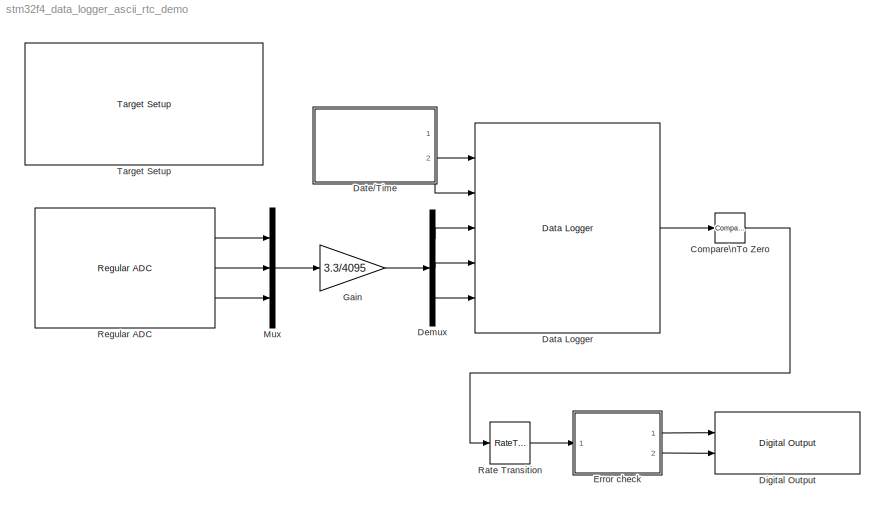
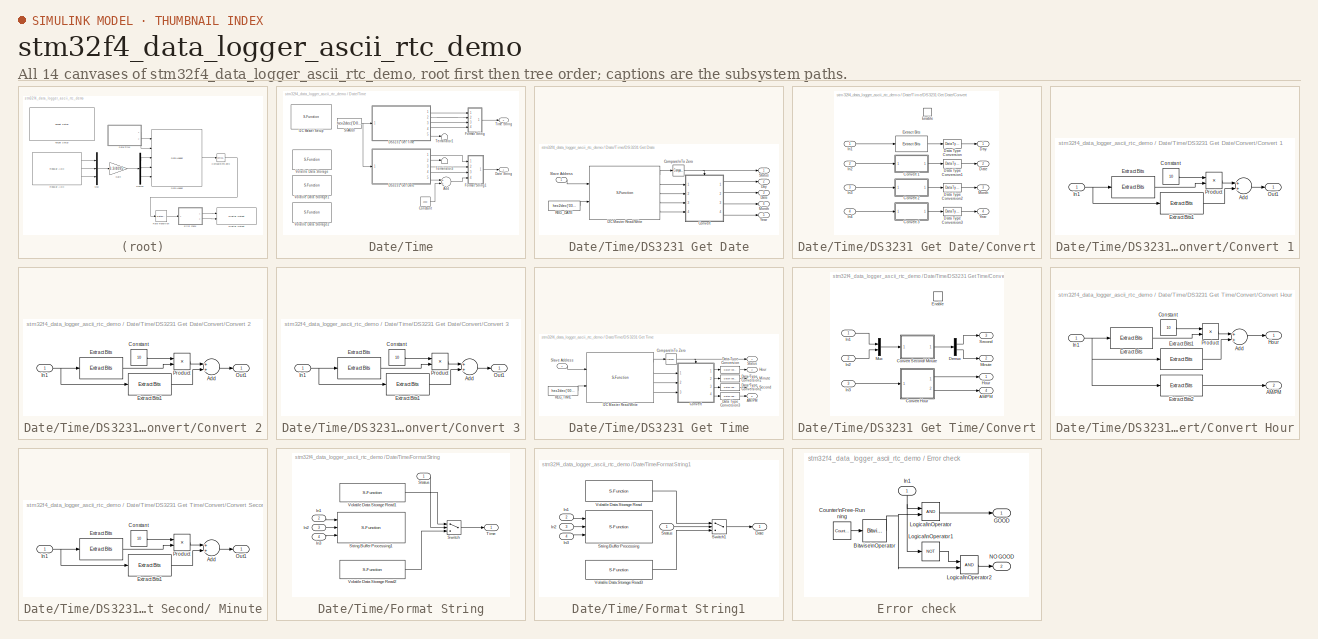
[diagram: thumbnail index - all 14 canvases of the model, root first then tree order]
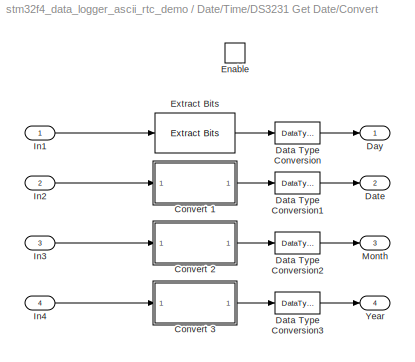
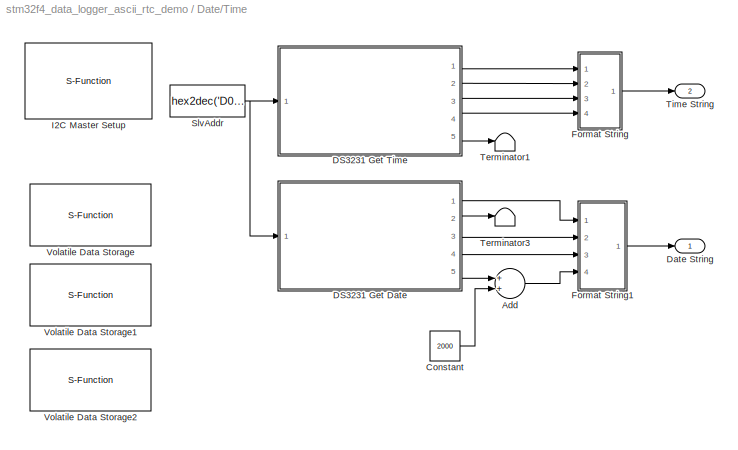
MODEL stm32f4_data_logger_ascii_rtc_demo
KIND model
CONFIG PreLoadFcn = waijung.modelPreload; % Required for working with Waijung Blockset. Do not remove.
BLOCK [Reference] Compare\nTo Zero  REF=simulink/Logic and Bit\nOperations/Compare\nTo Zero
  FunctionWithSeparateData = off
  LogicOutDataTypeMode = uint8
  Ports = [1, 1]
  RTWMemSecDataConstants = Inherit from model
  RTWMemSecDataInternal = Inherit from model
  RTWMemSecDataParameters = Inherit from model
  RTWMemSecFuncExecute = Inherit from model
  RTWMemSecFuncInitTerm = Inherit from model
  ShowPortLabels = FromPortIcon
  SourceBlock = simulink/Logic and Bit\nOperations/Compare\nTo Zero
  SourceType = Compare To Zero
  SystemSampleTime = -1
  ZeroCross = off
  relop = ==
BLOCK [Reference] Data Logger  REF=stm32f4_sdio_lib/Data Logger
  Ports = [5, 1]
  SourceBlock = stm32f4_sdio_lib/Data Logger
  SourceType = stm32f4_datalogger
  advance = off
  asciiformat = '%s,%s,%f,%f,%f,\\r\\n'
  blockid = DataLogger
  buffersize = 2048
  compat = 0
  conf = DataLogger
  createfileoptions = Rename
  enablestatus = on
  filename = 'data.csv'
  header = 'Date,Time,data1,data2,data3\\r\\n'
  inputportlabel = {'D0 (string)','D1 (string)','D2 (single)','D3 (single)','D4 (single)'}
  inputporttype = [-1,-1,-1,-1,-1]
  inputportwidth = [1,1,1,1,1]
  optionstring = [\"on\",\"off\",\"data.csv\",\"Ascii\",\"2048\",\"?\",\"?\",\"on\",\"1000000\",\"Rename\",\"-\",\"-\",\"-\",\"-\",\"-\",\"char *\",\"char *\",\"float\",\"float\",\"float\"]
  outputportlabel = {'Status'}
  outputporttype = [3]
  outputportwidth = [1]
  packet = Ascii
  portpinstr = 0
  porttype_double = 2
  porttype_int16 = 0
  porttype_int32 = 0
  porttype_int8 = 0
  porttype_single = 0
  porttype_uint16 = 0
  porttype_uint32 = 0
  porttype_uint8 = 1
  safeprintf = on
  sampletime = -1
  synctimer = 1
  transfer = Blocking
  variablefilename = off
BLOCK [SubSystem] Date//Time
  FunctionWithSeparateData = off
  MaskHideContents = off
  MinAlgLoopOccurrences = off
  Opaque = off
  Ports = [0, 2]
  PropExecContextOutsideSubsystem = off
  RTWSystemCode = Auto
  RequestExecContextInheritance = off
BLOCK [Sum] Date//Time/Add
  InputSameDT = off
  OutDataType = fixdt(1, 16)
  OutDataTypeMode = Inherit via internal rule
  OutDataTypeStr = Inherit: Inherit via internal rule
  OutScaling = 2^-10
  Ports = [2, 1]
  SaturateOnIntegerOverflow = off
BLOCK [Constant] Date//Time/Constant
  OutDataType = fixdt(1, 16)
  OutDataTypeMode = uint32
  OutDataTypeStr = uint32
  OutScaling = 2^0
  Value = 2000
BLOCK [SubSystem] Date//Time/DS3231 Get Date
  FunctionWithSeparateData = off
  MaskCallbackString = |amg_high_precision_rtc_callback('module');
  MaskDisplay = text(0.5, 0.5, 'Port: I2C1','ver','middle','hor','center');port_label('input', 1,'SlvAddr');port_label('output', 1,'Status');port_label('output', 2,'Day(1-7)');port_label('output', 3,'Date(1-31)');port_label('output', 4,'Month(1-12)');port_label('output', 5,'Year(0-99)');
  MaskEnableString = on,on
  MaskHelp = web(fullfile(waijungdocroot,'DS3231_Get_Date.htm'), '-browser')
  MaskHideContents = off
  MaskIconFrame = on
  MaskIconOpaque = on
  MaskIconRotate = none
  MaskIconUnits = normalized
  MaskInitialization = amg_high_precision_rtc_callback('init');\n
  MaskPortRotate = default
  MaskPromptString = Function|I2C module
  MaskSelfModifiable = on
  MaskStyleString = popup(temp|time|date),popup(1|2|3)
  MaskTabNameString = ,
  MaskToolTipString = on,on
  MaskTunableValueString = on,on
  MaskValueString = date|1
  MaskVarAliasString = ,
  MaskVariables = blockfunction=@1;module=@2;
  MaskVisibilityString = off,on
  MinAlgLoopOccurrences = off
  Opaque = off
  Ports = [1, 5]
  PropExecContextOutsideSubsystem = off
  RTWSystemCode = Auto
  RequestExecContextInheritance = off
  ShowPortLabels = FromPortBlockName
BLOCK [Reference] Date//Time/DS3231 Get Date/Compare\nTo Zero  REF=simulink/Logic and Bit\nOperations/Compare\nTo Zero
  FunctionWithSeparateData = off
  LogicOutDataTypeMode = uint8
  Ports = [1, 1]
  RTWMemSecDataConstants = Inherit from model
  RTWMemSecDataInternal = Inherit from model
  RTWMemSecDataParameters = Inherit from model
  RTWMemSecFuncExecute = Inherit from model
  RTWMemSecFuncInitTerm = Inherit from model
  ShowPortLabels = FromPortIcon
  SourceBlock = simulink/Logic and Bit\nOperations/Compare\nTo Zero
  SourceType = Compare To Zero
  SystemSampleTime = -1
  ZeroCross = off
  relop = ==
BLOCK [SubSystem] Date//Time/DS3231 Get Date/Convert
  FunctionWithSeparateData = off
  MaskHideContents = off
  MinAlgLoopOccurrences = off
  Opaque = off
  Ports = [4, 4, 1]
  PropExecContextOutsideSubsystem = off
  RTWSystemCode = Auto
  RequestExecContextInheritance = off
  TreatAsAtomicUnit = on
BLOCK [SubSystem] Date//Time/DS3231 Get Date/Convert/Convert 1
  FunctionWithSeparateData = off
  MaskHideContents = off
  MinAlgLoopOccurrences = off
  Opaque = off
  Ports = [1, 1]
  PropExecContextOutsideSubsystem = off
  RTWSystemCode = Auto
  RequestExecContextInheritance = off
BLOCK [Sum] Date//Time/DS3231 Get Date/Convert/Convert 1/Add
  InputSameDT = off
  OutDataType = fixdt(1, 16)
  OutDataTypeMode = Inherit via internal rule
  OutDataTypeStr = Inherit: Inherit via internal rule
  OutScaling = 2^-10
  Ports = [2, 1]
  SaturateOnIntegerOverflow = off
BLOCK [Constant] Date//Time/DS3231 Get Date/Convert/Convert 1/Constant
  OutDataType = fixdt(1, 16)
  OutDataTypeMode = uint8
  OutDataTypeStr = uint8
  OutScaling = 2^0
  Value = 10
BLOCK [Reference] Date//Time/DS3231 Get Date/Convert/Convert 1/Extract Bits  REF=simulink/Logic and Bit\nOperations/Extract Bits
  FunctionWithSeparateData = off
  Ports = [1, 1]
  RTWMemSecDataConstants = Inherit from model
  RTWMemSecDataInternal = Inherit from model
  RTWMemSecDataParameters = Inherit from model
  RTWMemSecFuncExecute = Inherit from model
  RTWMemSecFuncInitTerm = Inherit from model
  ShowPortLabels = FromPortIcon
  SourceBlock = simulink/Logic and Bit\nOperations/Extract Bits
  SourceType = Extract Bits
  SystemSampleTime = -1
  bitIdxRange = [4 5]
  bitsToExtract = Range of bits
  numBits = 8
  outScalingMode = Treat bit field as an integer
BLOCK [Reference] Date//Time/DS3231 Get Date/Convert/Convert 1/Extract Bits1  REF=simulink/Logic and Bit\nOperations/Extract Bits
  FunctionWithSeparateData = off
  Ports = [1, 1]
  RTWMemSecDataConstants = Inherit from model
  RTWMemSecDataInternal = Inherit from model
  RTWMemSecDataParameters = Inherit from model
  RTWMemSecFuncExecute = Inherit from model
  RTWMemSecFuncInitTerm = Inherit from model
  ShowPortLabels = FromPortIcon
  SourceBlock = simulink/Logic and Bit\nOperations/Extract Bits
  SourceType = Extract Bits
  SystemSampleTime = -1
  bitIdxRange = [0 3]
  bitsToExtract = Range of bits
  numBits = 8
  outScalingMode = Treat bit field as an integer
BLOCK [Inport] Date//Time/DS3231 Get Date/Convert/Convert 1/In1
  IconDisplay = Port number
BLOCK [Outport] Date//Time/DS3231 Get Date/Convert/Convert 1/Out1
  IconDisplay = Port number
BLOCK [Product] Date//Time/DS3231 Get Date/Convert/Convert 1/Product
  InputSameDT = off
  OutDataType = fixdt(1, 16)
  OutDataTypeMode = Inherit via internal rule
  OutDataTypeStr = Inherit: Inherit via internal rule
  OutScaling = 2^0
  Ports = [2, 1]
  SaturateOnIntegerOverflow = off
BLOCK [SubSystem] Date//Time/DS3231 Get Date/Convert/Convert 2
  FunctionWithSeparateData = off
  MaskHideContents = off
  MinAlgLoopOccurrences = off
  Opaque = off
  Ports = [1, 1]
  PropExecContextOutsideSubsystem = off
  RTWSystemCode = Auto
  RequestExecContextInheritance = off
BLOCK [Sum] Date//Time/DS3231 Get Date/Convert/Convert 2/Add
  InputSameDT = off
  OutDataType = fixdt(1, 16)
  OutDataTypeMode = Inherit via internal rule
  OutDataTypeStr = Inherit: Inherit via internal rule
  OutScaling = 2^-10
  Ports = [2, 1]
  SaturateOnIntegerOverflow = off
BLOCK [Constant] Date//Time/DS3231 Get Date/Convert/Convert 2/Constant
  OutDataType = fixdt(1, 16)
  OutDataTypeMode = uint8
  OutDataTypeStr = uint8
  OutScaling = 2^0
  Value = 10
BLOCK [Reference] Date//Time/DS3231 Get Date/Convert/Convert 2/Extract Bits  REF=simulink/Logic and Bit\nOperations/Extract Bits
  FunctionWithSeparateData = off
  Ports = [1, 1]
  RTWMemSecDataConstants = Inherit from model
  RTWMemSecDataInternal = Inherit from model
  RTWMemSecDataParameters = Inherit from model
  RTWMemSecFuncExecute = Inherit from model
  RTWMemSecFuncInitTerm = Inherit from model
  ShowPortLabels = FromPortIcon
  SourceBlock = simulink/Logic and Bit\nOperations/Extract Bits
  SourceType = Extract Bits
  SystemSampleTime = -1
  bitIdxRange = [4 4]
  bitsToExtract = Range of bits
  numBits = 8
  outScalingMode = Treat bit field as an integer
BLOCK [Reference] Date//Time/DS3231 Get Date/Convert/Convert 2/Extract Bits1  REF=simulink/Logic and Bit\nOperations/Extract Bits
  FunctionWithSeparateData = off
  Ports = [1, 1]
  RTWMemSecDataConstants = Inherit from model
  RTWMemSecDataInternal = Inherit from model
  RTWMemSecDataParameters = Inherit from model
  RTWMemSecFuncExecute = Inherit from model
  RTWMemSecFuncInitTerm = Inherit from model
  ShowPortLabels = FromPortIcon
  SourceBlock = simulink/Logic and Bit\nOperations/Extract Bits
  SourceType = Extract Bits
  SystemSampleTime = -1
  bitIdxRange = [0 3]
  bitsToExtract = Range of bits
  numBits = 8
  outScalingMode = Treat bit field as an integer
BLOCK [Inport] Date//Time/DS3231 Get Date/Convert/Convert 2/In1
  IconDisplay = Port number
BLOCK [Outport] Date//Time/DS3231 Get Date/Convert/Convert 2/Out1
  IconDisplay = Port number
BLOCK [Product] Date//Time/DS3231 Get Date/Convert/Convert 2/Product
  InputSameDT = off
  OutDataType = fixdt(1, 16)
  OutDataTypeMode = Inherit via internal rule
  OutDataTypeStr = Inherit: Inherit via internal rule
  OutScaling = 2^0
  Ports = [2, 1]
  SaturateOnIntegerOverflow = off
BLOCK [SubSystem] Date//Time/DS3231 Get Date/Convert/Convert 3
  FunctionWithSeparateData = off
  MaskHideContents = off
  MinAlgLoopOccurrences = off
  Opaque = off
  Ports = [1, 1]
  PropExecContextOutsideSubsystem = off
  RTWSystemCode = Auto
  RequestExecContextInheritance = off
BLOCK [Sum] Date//Time/DS3231 Get Date/Convert/Convert 3/Add
  InputSameDT = off
  OutDataType = fixdt(1, 16)
  OutDataTypeMode = Inherit via internal rule
  OutDataTypeStr = Inherit: Inherit via internal rule
  OutScaling = 2^-10
  Ports = [2, 1]
  SaturateOnIntegerOverflow = off
BLOCK [Constant] Date//Time/DS3231 Get Date/Convert/Convert 3/Constant
  OutDataType = fixdt(1, 16)
  OutDataTypeMode = uint8
  OutDataTypeStr = uint8
  OutScaling = 2^0
  Value = 10
BLOCK [Reference] Date//Time/DS3231 Get Date/Convert/Convert 3/Extract Bits  REF=simulink/Logic and Bit\nOperations/Extract Bits
  FunctionWithSeparateData = off
  Ports = [1, 1]
  RTWMemSecDataConstants = Inherit from model
  RTWMemSecDataInternal = Inherit from model
  RTWMemSecDataParameters = Inherit from model
  RTWMemSecFuncExecute = Inherit from model
  RTWMemSecFuncInitTerm = Inherit from model
  ShowPortLabels = FromPortIcon
  SourceBlock = simulink/Logic and Bit\nOperations/Extract Bits
  SourceType = Extract Bits
  SystemSampleTime = -1
  bitIdxRange = [4 7]
  bitsToExtract = Range of bits
  numBits = 8
  outScalingMode = Treat bit field as an integer
BLOCK [Reference] Date//Time/DS3231 Get Date/Convert/Convert 3/Extract Bits1  REF=simulink/Logic and Bit\nOperations/Extract Bits
  FunctionWithSeparateData = off
  Ports = [1, 1]
  RTWMemSecDataConstants = Inherit from model
  RTWMemSecDataInternal = Inherit from model
  RTWMemSecDataParameters = Inherit from model
  RTWMemSecFuncExecute = Inherit from model
  RTWMemSecFuncInitTerm = Inherit from model
  ShowPortLabels = FromPortIcon
  SourceBlock = simulink/Logic and Bit\nOperations/Extract Bits
  SourceType = Extract Bits
  SystemSampleTime = -1
  bitIdxRange = [0 3]
  bitsToExtract = Range of bits
  numBits = 8
  outScalingMode = Treat bit field as an integer
BLOCK [Inport] Date//Time/DS3231 Get Date/Convert/Convert 3/In1
  IconDisplay = Port number
BLOCK [Outport] Date//Time/DS3231 Get Date/Convert/Convert 3/Out1
  IconDisplay = Port number
BLOCK [Product] Date//Time/DS3231 Get Date/Convert/Convert 3/Product
  InputSameDT = off
  OutDataType = fixdt(1, 16)
  OutDataTypeMode = Inherit via internal rule
  OutDataTypeStr = Inherit: Inherit via internal rule
  OutScaling = 2^0
  Ports = [2, 1]
  SaturateOnIntegerOverflow = off
BLOCK [DataTypeConversion] Date//Time/DS3231 Get Date/Convert/Data Type Conversion
  OutDataType = fixdt(1, 16)
  OutDataTypeMode = uint8
  OutDataTypeStr = uint8
  OutScaling = 2^0
  RndMeth = Floor
  SaturateOnIntegerOverflow = off
BLOCK [DataTypeConversion] Date//Time/DS3231 Get Date/Convert/Data Type Conversion1
  OutDataType = fixdt(1, 16)
  OutDataTypeMode = uint8
  OutDataTypeStr = uint8
  OutScaling = 2^0
  RndMeth = Floor
  SaturateOnIntegerOverflow = off
BLOCK [DataTypeConversion] Date//Time/DS3231 Get Date/Convert/Data Type Conversion2
  OutDataType = fixdt(1, 16)
  OutDataTypeMode = uint8
  OutDataTypeStr = uint8
  OutScaling = 2^0
  RndMeth = Floor
  SaturateOnIntegerOverflow = off
BLOCK [DataTypeConversion] Date//Time/DS3231 Get Date/Convert/Data Type Conversion3
  OutDataType = fixdt(1, 16)
  OutDataTypeMode = uint8
  OutDataTypeStr = uint8
  OutScaling = 2^0
  RndMeth = Floor
  SaturateOnIntegerOverflow = off
BLOCK [Outport] Date//Time/DS3231 Get Date/Convert/Date
  IconDisplay = Port number
  OutDataType = fixdt(1, 16)
  OutScaling = 2^0
  Port = 2
BLOCK [Outport] Date//Time/DS3231 Get Date/Convert/Day
  IconDisplay = Port number
  OutDataType = fixdt(1, 16)
  OutScaling = 2^0
BLOCK [EnablePort] Date//Time/DS3231 Get Date/Convert/Enable
  Ports = []
BLOCK [Reference] Date//Time/DS3231 Get Date/Convert/Extract Bits  REF=simulink/Logic and Bit\nOperations/Extract Bits
  FunctionWithSeparateData = off
  Ports = [1, 1]
  RTWMemSecDataConstants = Inherit from model
  RTWMemSecDataInternal = Inherit from model
  RTWMemSecDataParameters = Inherit from model
  RTWMemSecFuncExecute = Inherit from model
  RTWMemSecFuncInitTerm = Inherit from model
  ShowPortLabels = FromPortIcon
  SourceBlock = simulink/Logic and Bit\nOperations/Extract Bits
  SourceType = Extract Bits
  SystemSampleTime = -1
  bitIdxRange = [0 3]
  bitsToExtract = Range of bits
  numBits = 8
  outScalingMode = Treat bit field as an integer
BLOCK [Inport] Date//Time/DS3231 Get Date/Convert/In1
  IconDisplay = Port number
  OutDataType = fixdt(1, 16)
  OutScaling = 2^0
BLOCK [Inport] Date//Time/DS3231 Get Date/Convert/In2
  IconDisplay = Port number
  OutDataType = fixdt(1, 16)
  OutScaling = 2^0
  Port = 2
BLOCK [Inport] Date//Time/DS3231 Get Date/Convert/In3
  IconDisplay = Port number
  OutDataType = fixdt(1, 16)
  OutScaling = 2^0
  Port = 3
BLOCK [Inport] Date//Time/DS3231 Get Date/Convert/In4
  IconDisplay = Port number
  OutDataType = fixdt(1, 16)
  OutScaling = 2^0
  Port = 4
BLOCK [Outport] Date//Time/DS3231 Get Date/Convert/Month
  IconDisplay = Port number
  OutDataType = fixdt(1, 16)
  OutScaling = 2^0
  Port = 3
BLOCK [Outport] Date//Time/DS3231 Get Date/Convert/Year
  IconDisplay = Port number
  OutDataType = fixdt(1, 16)
  OutScaling = 2^0
  Port = 4
BLOCK [Outport] Date//Time/DS3231 Get Date/Date
  IconDisplay = Port number
  Port = 3
BLOCK [Outport] Date//Time/DS3231 Get Date/Day
  IconDisplay = Port number
  Port = 2
BLOCK [S-Function] Date//Time/DS3231 Get Date/I2C Master Read//Write
  EnableBusSupport = off
  FunctionName = stm32f4_i2c
  MaskCallbackString = stm32f4_i2c_callback('configuration');|stm32f4_i2c_callback('module');|||stm32f4_i2c_callback('dutycycle');|||stm32f4_i2c_callback('writecount');|stm32f4_i2c_callback('readcount');|stm32f4_i2c_callback('sdapin');|stm32f4_i2c_callback('sclpin');||||stm32f4_i2c_callback('confstr');|stm32f4_i2c_callback('sampletime');|stm32f4_i2c_callback('sampletimestr');|stm32f4_i2c_callback('blockid');  <repeated x3 — deduplicated; at blocks: I2C Master Read/Write, I2C Master Setup>
  MaskDisplay = text(0.5, 0.5, 'Module: I2C1\\nTransfer: Blocking\\nWrite: 1 bytes\\nRead: 4 bytes\\nTs (sec): 0.5','ver','middle','hor','center');port_label('input', 1,'SlvAddr');port_label('input', 2,'Wr0 (uint8)');port_label('output', 1,'Status');port_label('output', 2,'Rd0 (uint8)');port_label('output', 3,'Rd1 (uint8)');port_label('output', 4,'Rd2 (uint8)');port_label('output', 5,'Rd3 (uint8)');
  MaskEnableString = off,on,off,off,on,on,on,on,on,on,on,on,off,off,off,on,on,on
  MaskHelp = web(fullfile(waijungdocroot,'stm32f4_i2c_readwrite.htm'), '-browser')
  MaskIconFrame = on
  MaskIconOpaque = on
  MaskIconRotate = none
  MaskIconUnits = normalized
  MaskInitialization = stm32f4_i2c_callback('init');
  MaskPortRotate = default
  MaskPromptString = Configuration|I2C Module|Last module|Transfer mode|Duty cycle in fast mode|Clock speed (kHz)|Timeout (ms)|Bytes write count|Bytes read count|SDA pin|SCL pin|Wait write time (ms), default is 0|Input type array|Output type array|Configuration string|Sample time (sec)|Compiled sample time (sec) in string|BlockID  <repeated x3 — deduplicated; at blocks: I2C Master Read/Write, I2C Master Setup>
  MaskSelfModifiable = on
  MaskStyleString = popup(Setup|Transaction),popup(1|2|3),edit,popup(Blocking|Non-blocking),popup(TLow/THigh = 16/9|TLow/THigh = 2),edit,edit,edit,edit,popup(-|C9),popup(-|A8),edit,edit,edit,edit,edit,edit,edit
  MaskTabNameString = ,,,,,,,,,,,,,,,,,
  MaskToolTipString = on,on,on,on,on,on,on,on,on,on,on,on,on,on,on,on,on,on
  MaskTunableValueString = off,off,off,off,off,off,off,off,off,off,off,off,off,off,off,off,off,off
  MaskType = stm32f4_i2c
  MaskValueString = Transaction|1|3|Blocking|TLow/THigh = 2|400|25|1|4|C9|A8|0|[2 3 3]|[5 3 3 3 3 3]|[\"C\",\"9\",\"A\",\"8\",\"1\",\"1\",\"6\",\"0\",\"I2C_DutyCycle_2\",\"0\",\"off\"]|-1|0.5|DateTimeDS3231GetDateI2CMasterReadWrite
  MaskVarAliasString = ,,,,,,,,,,,,,,,,,
  MaskVariables = configuration=&1;module=&2;lastmodule=&3;transfer=&4;dutycycle=&5;clkspeed=@6;timeout=@7;writecount=@8;readcount=@9;sdapin=&10;sclpin=&11;waitwritetime=@12;inputtypearray=@13;outputtypearray=@14;confstr=&15;sampletime=@16;sampletimestr=&17;blockid=&18;  <repeated x3 — deduplicated; at blocks: I2C Master Read/Write, I2C Master Setup>
  MaskVisibilityString = off,on,off,off,off,off,off,on,on,off,off,on,off,off,off,on,off,off
  Parameters = configuration,module,transfer,clkspeed,timeout,sdapin,sclpin,writecount,readcount,inputtypearray,outputtypearray,confstr,sampletime,sampletimestr,blockid
  Ports = [2, 5]
BLOCK [Outport] Date//Time/DS3231 Get Date/Month
  IconDisplay = Port number
  Port = 4
BLOCK [Constant] Date//Time/DS3231 Get Date/REG_DATE
  OutDataType = fixdt(1, 16)
  OutDataTypeMode = uint8
  OutDataTypeStr = uint8
  OutScaling = 2^0
  Value = hex2dec('03')
BLOCK [Inport] Date//Time/DS3231 Get Date/Slave Address
  IconDisplay = Port number
  OutDataType = fixdt(1, 16)
  OutScaling = 2^0
BLOCK [Outport] Date//Time/DS3231 Get Date/Status
  IconDisplay = Port number
BLOCK [Outport] Date//Time/DS3231 Get Date/Year
  IconDisplay = Port number
  Port = 5
BLOCK [SubSystem] Date//Time/DS3231 Get Time
  FunctionWithSeparateData = off
  MaskCallbackString = |amg_high_precision_rtc_callback('module');
  MaskDisplay = text(0.5, 0.5, 'Port: I2C1','ver','middle','hor','center');port_label('input', 1,'SlvAddr');port_label('output', 1,'Status');port_label('output', 2,'Hour(0-11/23)');port_label('output', 3,'Minute(0-59)');port_label('output', 4,'Second(0-59)');port_label('output', 5,'AM(0)/PM(1)');
  MaskEnableString = on,on
  MaskHelp = web(fullfile(waijungdocroot,'DS3231_Get_Time.htm'), '-browser')
  MaskHideContents = off
  MaskIconFrame = on
  MaskIconOpaque = on
  MaskIconRotate = none
  MaskIconUnits = normalized
  MaskInitialization = amg_high_precision_rtc_callback('init');\n
  MaskPortRotate = default
  MaskPromptString = Function|I2C module
  MaskSelfModifiable = on
  MaskStyleString = popup(temp|time|date),popup(1|2|3)
  MaskTabNameString = ,
  MaskToolTipString = on,on
  MaskTunableValueString = on,on
  MaskValueString = time|1
  MaskVarAliasString = ,
  MaskVariables = blockfunction=@1;module=@2;
  MaskVisibilityString = off,on
  MinAlgLoopOccurrences = off
  Opaque = off
  Ports = [1, 5]
  PropExecContextOutsideSubsystem = off
  RTWSystemCode = Auto
  RequestExecContextInheritance = off
  ShowPortLabels = FromPortBlockName
BLOCK [Outport] Date//Time/DS3231 Get Time/AM//PM
  IconDisplay = Port number
  Port = 5
BLOCK [Reference] Date//Time/DS3231 Get Time/Compare\nTo Zero  REF=simulink/Logic and Bit\nOperations/Compare\nTo Zero
  FunctionWithSeparateData = off
  LogicOutDataTypeMode = uint8
  Ports = [1, 1]
  RTWMemSecDataConstants = Inherit from model
  RTWMemSecDataInternal = Inherit from model
  RTWMemSecDataParameters = Inherit from model
  RTWMemSecFuncExecute = Inherit from model
  RTWMemSecFuncInitTerm = Inherit from model
  ShowPortLabels = FromPortIcon
  SourceBlock = simulink/Logic and Bit\nOperations/Compare\nTo Zero
  SourceType = Compare To Zero
  SystemSampleTime = -1
  ZeroCross = off
  relop = ==
BLOCK [SubSystem] Date//Time/DS3231 Get Time/Convert
  FunctionWithSeparateData = off
  MaskHideContents = off
  MinAlgLoopOccurrences = off
  Opaque = off
  Ports = [3, 4, 1]
  PropExecContextOutsideSubsystem = off
  RTWSystemCode = Auto
  RequestExecContextInheritance = off
  TreatAsAtomicUnit = on
BLOCK [Outport] Date//Time/DS3231 Get Time/Convert/AM//PM
  IconDisplay = Port number
  OutDataType = fixdt(1, 16)
  OutScaling = 2^0
  Port = 4
BLOCK [SubSystem] Date//Time/DS3231 Get Time/Convert/Convert Hour
  FunctionWithSeparateData = off
  MaskHideContents = off
  MinAlgLoopOccurrences = off
  Opaque = off
  Ports = [1, 2]
  PropExecContextOutsideSubsystem = off
  RTWSystemCode = Auto
  RequestExecContextInheritance = off
BLOCK [Outport] Date//Time/DS3231 Get Time/Convert/Convert Hour/AM//PM
  IconDisplay = Port number
  Port = 2
BLOCK [Sum] Date//Time/DS3231 Get Time/Convert/Convert Hour/Add
  InputSameDT = off
  OutDataType = fixdt(1, 16)
  OutDataTypeMode = Inherit via internal rule
  OutDataTypeStr = Inherit: Inherit via internal rule
  OutScaling = 2^-10
  Ports = [2, 1]
  SaturateOnIntegerOverflow = off
BLOCK [Constant] Date//Time/DS3231 Get Time/Convert/Convert Hour/Constant
  OutDataType = fixdt(1, 16)
  OutDataTypeMode = uint8
  OutDataTypeStr = uint8
  OutScaling = 2^0
  Value = 10
BLOCK [Reference] Date//Time/DS3231 Get Time/Convert/Convert Hour/Extract Bits  REF=simulink/Logic and Bit\nOperations/Extract Bits
  FunctionWithSeparateData = off
  Ports = [1, 1]
  RTWMemSecDataConstants = Inherit from model
  RTWMemSecDataInternal = Inherit from model
  RTWMemSecDataParameters = Inherit from model
  RTWMemSecFuncExecute = Inherit from model
  RTWMemSecFuncInitTerm = Inherit from model
  ShowPortLabels = FromPortIcon
  SourceBlock = simulink/Logic and Bit\nOperations/Extract Bits
  SourceType = Extract Bits
  SystemSampleTime = -1
  bitIdxRange = [4 5]
  bitsToExtract = Range of bits
  numBits = 8
  outScalingMode = Treat bit field as an integer
BLOCK [Reference] Date//Time/DS3231 Get Time/Convert/Convert Hour/Extract Bits1  REF=simulink/Logic and Bit\nOperations/Extract Bits
  FunctionWithSeparateData = off
  Ports = [1, 1]
  RTWMemSecDataConstants = Inherit from model
  RTWMemSecDataInternal = Inherit from model
  RTWMemSecDataParameters = Inherit from model
  RTWMemSecFuncExecute = Inherit from model
  RTWMemSecFuncInitTerm = Inherit from model
  ShowPortLabels = FromPortIcon
  SourceBlock = simulink/Logic and Bit\nOperations/Extract Bits
  SourceType = Extract Bits
  SystemSampleTime = -1
  bitIdxRange = [0 3]
  bitsToExtract = Range of bits
  numBits = 8
  outScalingMode = Treat bit field as an integer
BLOCK [Reference] Date//Time/DS3231 Get Time/Convert/Convert Hour/Extract Bits2  REF=simulink/Logic and Bit\nOperations/Extract Bits
  FunctionWithSeparateData = off
  Ports = [1, 1]
  RTWMemSecDataConstants = Inherit from model
  RTWMemSecDataInternal = Inherit from model
  RTWMemSecDataParameters = Inherit from model
  RTWMemSecFuncExecute = Inherit from model
  RTWMemSecFuncInitTerm = Inherit from model
  ShowPortLabels = FromPortIcon
  SourceBlock = simulink/Logic and Bit\nOperations/Extract Bits
  SourceType = Extract Bits
  SystemSampleTime = -1
  bitIdxRange = [5 5]
  bitsToExtract = Range of bits
  numBits = 8
  outScalingMode = Treat bit field as an integer
BLOCK [Outport] Date//Time/DS3231 Get Time/Convert/Convert Hour/Hour
  IconDisplay = Port number
BLOCK [Inport] Date//Time/DS3231 Get Time/Convert/Convert Hour/In1
  IconDisplay = Port number
BLOCK [Product] Date//Time/DS3231 Get Time/Convert/Convert Hour/Product
  InputSameDT = off
  OutDataType = fixdt(1, 16)
  OutDataTypeMode = Inherit via internal rule
  OutDataTypeStr = Inherit: Inherit via internal rule
  OutScaling = 2^0
  Ports = [2, 1]
  SaturateOnIntegerOverflow = off
BLOCK [SubSystem] Date//Time/DS3231 Get Time/Convert/Convert Second// Minute
  FunctionWithSeparateData = off
  MaskHideContents = off
  MinAlgLoopOccurrences = off
  Opaque = off
  Ports = [1, 1]
  PropExecContextOutsideSubsystem = off
  RTWSystemCode = Auto
  RequestExecContextInheritance = off
BLOCK [Sum] Date//Time/DS3231 Get Time/Convert/Convert Second// Minute/Add
  InputSameDT = off
  OutDataType = fixdt(1, 16)
  OutDataTypeMode = Inherit via internal rule
  OutDataTypeStr = Inherit: Inherit via internal rule
  OutScaling = 2^-10
  Ports = [2, 1]
  SaturateOnIntegerOverflow = off
BLOCK [Constant] Date//Time/DS3231 Get Time/Convert/Convert Second// Minute/Constant
  OutDataType = fixdt(1, 16)
  OutDataTypeMode = uint8
  OutDataTypeStr = uint8
  OutScaling = 2^0
  Value = 10
BLOCK [Reference] Date//Time/DS3231 Get Time/Convert/Convert Second// Minute/Extract Bits  REF=simulink/Logic and Bit\nOperations/Extract Bits
  FunctionWithSeparateData = off
  Ports = [1, 1]
  RTWMemSecDataConstants = Inherit from model
  RTWMemSecDataInternal = Inherit from model
  RTWMemSecDataParameters = Inherit from model
  RTWMemSecFuncExecute = Inherit from model
  RTWMemSecFuncInitTerm = Inherit from model
  ShowPortLabels = FromPortIcon
  SourceBlock = simulink/Logic and Bit\nOperations/Extract Bits
  SourceType = Extract Bits
  SystemSampleTime = -1
  bitIdxRange = [4 6]
  bitsToExtract = Range of bits
  numBits = 8
  outScalingMode = Treat bit field as an integer
BLOCK [Reference] Date//Time/DS3231 Get Time/Convert/Convert Second// Minute/Extract Bits1  REF=simulink/Logic and Bit\nOperations/Extract Bits
  FunctionWithSeparateData = off
  Ports = [1, 1]
  RTWMemSecDataConstants = Inherit from model
  RTWMemSecDataInternal = Inherit from model
  RTWMemSecDataParameters = Inherit from model
  RTWMemSecFuncExecute = Inherit from model
  RTWMemSecFuncInitTerm = Inherit from model
  ShowPortLabels = FromPortIcon
  SourceBlock = simulink/Logic and Bit\nOperations/Extract Bits
  SourceType = Extract Bits
  SystemSampleTime = -1
  bitIdxRange = [0 3]
  bitsToExtract = Range of bits
  numBits = 8
  outScalingMode = Treat bit field as an integer
BLOCK [Inport] Date//Time/DS3231 Get Time/Convert/Convert Second// Minute/In1
  IconDisplay = Port number
BLOCK [Outport] Date//Time/DS3231 Get Time/Convert/Convert Second// Minute/Out1
  IconDisplay = Port number
BLOCK [Product] Date//Time/DS3231 Get Time/Convert/Convert Second// Minute/Product
  InputSameDT = off
  OutDataType = fixdt(1, 16)
  OutDataTypeMode = Inherit via internal rule
  OutDataTypeStr = Inherit: Inherit via internal rule
  OutScaling = 2^0
  Ports = [2, 1]
  SaturateOnIntegerOverflow = off
BLOCK [Demux] Date//Time/DS3231 Get Time/Convert/Demux
  DisplayOption = bar
  Outputs = 2
  Ports = [1, 2]
BLOCK [EnablePort] Date//Time/DS3231 Get Time/Convert/Enable
  Ports = []
BLOCK [Outport] Date//Time/DS3231 Get Time/Convert/Hour
  IconDisplay = Port number
  OutDataType = fixdt(1, 16)
  OutScaling = 2^0
BLOCK [Inport] Date//Time/DS3231 Get Time/Convert/In1
  IconDisplay = Port number
  OutDataType = fixdt(1, 16)
  OutScaling = 2^0
BLOCK [Inport] Date//Time/DS3231 Get Time/Convert/In2
  IconDisplay = Port number
  OutDataType = fixdt(1, 16)
  OutScaling = 2^0
  Port = 2
BLOCK [Inport] Date//Time/DS3231 Get Time/Convert/In3
  IconDisplay = Port number
  OutDataType = fixdt(1, 16)
  OutScaling = 2^0
  Port = 3
BLOCK [Outport] Date//Time/DS3231 Get Time/Convert/Minute
  IconDisplay = Port number
  OutDataType = fixdt(1, 16)
  OutScaling = 2^0
  Port = 2
BLOCK [Mux] Date//Time/DS3231 Get Time/Convert/Mux
  DisplayOption = bar
  Inputs = 2
  Ports = [2, 1]
BLOCK [Outport] Date//Time/DS3231 Get Time/Convert/Second
  IconDisplay = Port number
  OutDataType = fixdt(1, 16)
  OutScaling = 2^0
  Port = 3
BLOCK [DataTypeConversion] Date//Time/DS3231 Get Time/Data Type Conversion
  OutDataType = fixdt(1, 16)
  OutDataTypeMode = uint8
  OutDataTypeStr = uint8
  OutScaling = 2^0
  RndMeth = Floor
  SaturateOnIntegerOverflow = off
BLOCK [DataTypeConversion] Date//Time/DS3231 Get Time/Data Type Conversion1
  OutDataType = fixdt(1, 16)
  OutDataTypeMode = uint8
  OutDataTypeStr = uint8
  OutScaling = 2^0
  RndMeth = Floor
  SaturateOnIntegerOverflow = off
BLOCK [DataTypeConversion] Date//Time/DS3231 Get Time/Data Type Conversion2
  OutDataType = fixdt(1, 16)
  OutDataTypeMode = uint8
  OutDataTypeStr = uint8
  OutScaling = 2^0
  RndMeth = Floor
  SaturateOnIntegerOverflow = off
BLOCK [DataTypeConversion] Date//Time/DS3231 Get Time/Data Type Conversion3
  OutDataType = fixdt(1, 16)
  OutDataTypeMode = uint8
  OutDataTypeStr = uint8
  OutScaling = 2^0
  RndMeth = Floor
  SaturateOnIntegerOverflow = off
BLOCK [Outport] Date//Time/DS3231 Get Time/Hour
  IconDisplay = Port number
  Port = 2
BLOCK [S-Function] Date//Time/DS3231 Get Time/I2C Master Read//Write
  EnableBusSupport = off
  FunctionName = stm32f4_i2c
  MaskDisplay = text(0.5, 0.5, 'Module: I2C1\\nTransfer: Blocking\\nWrite: 1 bytes\\nRead: 3 bytes\\nTs (sec): 0.5','ver','middle','hor','center');port_label('input', 1,'SlvAddr');port_label('input', 2,'Wr0 (uint8)');port_label('output', 1,'Status');port_label('output', 2,'Rd0 (uint8)');port_label('output', 3,'Rd1 (uint8)');port_label('output', 4,'Rd2 (uint8)');
  MaskEnableString = off,on,off,off,on,on,on,on,on,on,on,on,off,off,off,on,on,on
  MaskHelp = web(fullfile(waijungdocroot,'stm32f4_i2c_readwrite.htm'), '-browser')
  MaskIconFrame = on
  MaskIconOpaque = on
  MaskIconRotate = none
  MaskIconUnits = normalized
  MaskInitialization = stm32f4_i2c_callback('init');
  MaskPortRotate = default
  MaskSelfModifiable = on
  MaskStyleString = popup(Setup|Transaction),popup(1|2|3),edit,popup(Blocking|Non-blocking),popup(TLow/THigh = 16/9|TLow/THigh = 2),edit,edit,edit,edit,popup(-|C9),popup(-|A8),edit,edit,edit,edit,edit,edit,edit
  MaskTabNameString = ,,,,,,,,,,,,,,,,,
  MaskToolTipString = on,on,on,on,on,on,on,on,on,on,on,on,on,on,on,on,on,on
  MaskTunableValueString = off,off,off,off,off,off,off,off,off,off,off,off,off,off,off,off,off,off
  MaskType = stm32f4_i2c
  MaskValueString = Transaction|1|3|Blocking|TLow/THigh = 2|400|25|1|3|C9|A8|0|[2 3 3]|[4 3 3 3 3]|[\"C\",\"9\",\"A\",\"8\",\"1\",\"1\",\"6\",\"0\",\"I2C_DutyCycle_2\",\"0\",\"off\"]|-1|0.5|DateTimeDS3231GetTimeI2CMasterReadWrite
  MaskVarAliasString = ,,,,,,,,,,,,,,,,,
  MaskVisibilityString = off,on,off,off,off,off,off,on,on,off,off,on,off,off,off,on,off,off
  Parameters = configuration,module,transfer,clkspeed,timeout,sdapin,sclpin,writecount,readcount,inputtypearray,outputtypearray,confstr,sampletime,sampletimestr,blockid
  Ports = [2, 4]
BLOCK [Outport] Date//Time/DS3231 Get Time/Minute
  IconDisplay = Port number
  Port = 3
BLOCK [Constant] Date//Time/DS3231 Get Time/REG_TIME
  OutDataType = fixdt(1, 16)
  OutDataTypeMode = uint8
  OutDataTypeStr = uint8
  OutScaling = 2^0
  Value = hex2dec('00')
BLOCK [Outport] Date//Time/DS3231 Get Time/Second
  IconDisplay = Port number
  Port = 4
BLOCK [Inport] Date//Time/DS3231 Get Time/Slave Address
  IconDisplay = Port number
  OutDataType = fixdt(1, 16)
  OutScaling = 2^0
BLOCK [Outport] Date//Time/DS3231 Get Time/Status
  IconDisplay = Port number
BLOCK [Outport] Date//Time/Date String
  IconDisplay = Port number
  OutDataType = fixdt(1, 16)
  OutScaling = 2^0
BLOCK [SubSystem] Date//Time/Format String
  FunctionWithSeparateData = off
  MaskHideContents = off
  MinAlgLoopOccurrences = off
  Opaque = off
  Ports = [4, 1]
  PropExecContextOutsideSubsystem = off
  RTWSystemCode = Auto
  RequestExecContextInheritance = off
BLOCK [Inport] Date//Time/Format String/In1
  IconDisplay = Port number
  Port = 2
BLOCK [Inport] Date//Time/Format String/In2
  IconDisplay = Port number
  Port = 3
BLOCK [Inport] Date//Time/Format String/In3
  IconDisplay = Port number
  Port = 4
BLOCK [Inport] Date//Time/Format String/Status
  IconDisplay = Port number
BLOCK [S-Function] Date//Time/Format String/String Buffer Processing1
  EnableBusSupport = off
  FunctionName = waijung_stringbuffer_processing
  MaskCallbackString = waijung_stringbuffer_processing_callback('configuration');||waijung_stringbuffer_processing_callback('sformat');|waijung_stringbuffer_processing_callback('enableoutput');||||||waijung_stringbuffer_processing_callback('sampletime');|waijung_stringbuffer_processing_callback('sampletimestr');|waijung_stringbuffer_processing_callback('blockid');
  MaskDescription = This block implements string processing, sprintf/ sscanf command.\nSupported format:\n%u, %i, %o, %x: uint32\n%d: int32\n%e, %g, %f: single\n%c: int8\n\nStatus:\n 0: Failed.\n Non-zero: Success.
  MaskDisplay = text(0.5, 0.5, '[ sprintf ]\\nBuffer: time_str\\nTs (sec): 0.5','ver','middle','hor','center');port_label('input', 1,'%u');port_label('input', 2,'%u');port_label('input', 3,'%u');
  MaskEnableString = on,on,on,on,off,on,on,on,on,on,off,off
  MaskHelp = web(fullfile(waijungdocroot,'String_Buffer_Processing.htm'))
  MaskIconFrame = on
  MaskIconOpaque = on
  MaskIconRotate = none
  MaskIconUnits = normalized
  MaskInitialization = waijung_stringbuffer_processing_callback('init');
  MaskPortRotate = default
  MaskPromptString = Function|String buffer|Printf format|Enable output status|Variable name|Input type array|Output type array|Port type list|Port type count|Sample time (sec)|Compiled sample time (sec) in string|BlockID
  MaskSelfModifiable = on
  MaskStyleString = popup(sprintf|sscanf),popup(date_str|time_str|date_time_error|<output>),edit,checkbox,edit,edit,edit,edit,edit,edit,edit,edit
  MaskTabNameString = ,,,,,,,,,,,
  MaskToolTipString = on,on,on,on,on,on,on,on,on,on,on,on
  MaskTunableValueString = on,off,off,off,off,off,off,off,off,off,off,off
  MaskType = waijung_stringbuffer_processing
  MaskValueString = sprintf|time_str|'%2u:%2u:%2u'|off|DateTimeVolatileDataStorage1_time_str|[3 -1 -1 -1]|[0]|[\"uint32_t\",\"uint32_t\",\"uint32_t\"]|3|-1|0.5|DateTimeFormatStringStringBufferProcessing1
  MaskVarAliasString = ,,,,,,,,,,,
  MaskVariables = configuration=&1;storagename=&2;sformat=@3;enableoutput=&4;varname=&5;inputtypearray=@6;outputtypearray=@7;porttypes=&8;portcount=@9;sampletime=@10;sampletimestr=&11;blockid=&12;
  MaskVisibilityString = on,on,on,on,off,off,off,off,off,on,off,off
  Parameters = configuration,varname,sformat,porttypes,portcount,inputtypearray,outputtypearray,sampletime,sampletimestr,blockid
  Ports = [3]
BLOCK [Switch] Date//Time/Format String/Switch
  Criteria = u2 ~= 0
  InputSameDT = off
  OutDataType = fixdt(1, 16)
  OutScaling = 2^0
  SaturateOnIntegerOverflow = off
BLOCK [Outport] Date//Time/Format String/Time
  IconDisplay = Port number
BLOCK [S-Function] Date//Time/Format String/Volatile Data Storage Read1
  EnableBusSupport = off
  FunctionName = waijung_vdata_read
  MaskCallbackString = waijung_vdata_read_callback('storagename');|waijung_vdata_read_callback('varname');|waijung_vdata_read_callback('sampletime');|waijung_vdata_read_callback('sampletimestr');|waijung_vdata_read_callback('blockid');|waijung_vdata_read_callback('storagetype');|  <repeated x4 — deduplicated; at blocks: Volatile Data Storage Read1, Volatile Data Storage Read2, Volatile Data Storage Read, Volatile Data Storage Read3>
  MaskDescription = This block implements read data from a buffer.
  MaskDisplay = text(0.05, 0.5, 'Buffer: time_str','ver','middle','hor','left');port_label('output',1,'D1(string)')
  MaskEnableString = on,off,on,off,off,on,on
  MaskHelp = web(fullfile(waijungdocroot,'Volatile_Data_Storage_Read.htm'))
  MaskIconFrame = on
  MaskIconOpaque = on
  MaskIconRotate = none
  MaskIconUnits = normalized
  MaskInitialization = waijung_vdata_read_callback('init');
  MaskPortRotate = default
  MaskPromptString = Storage Name|Variable name|Sample time (sec)|Compiled sample time (sec) in string|BlockID|Data type|Data type string
  MaskSelfModifiable = on
  MaskStyleString = popup(date_str|time_str|date_time_error),edit,edit,edit,edit,edit,edit
  MaskTabNameString = ,,,,,,
  MaskToolTipString = on,on,on,on,on,on,on
  MaskTunableValueString = off,off,off,off,off,off,off
  MaskType = waijung_vdata_read
  MaskValueString = time_str|DateTimeVolatileDataStorage1_time_str|inf|0.5|DateTimeFormatStringVolatileDataStorageRead1|string|uint32_t
  MaskVarAliasString = ,,,,,,
  MaskVariables = storagename=&1;varname=&2;sampletime=@3;sampletimestr=&4;blockid=&5;storagetype=&6;storagetypestr=&7;
  MaskVisibilityString = on,off,on,off,off,off,off
  Parameters = storagename,varname,sampletime,sampletimestr,blockid,storagetype,storagetypestr
  Ports = [0, 1]
BLOCK [S-Function] Date//Time/Format String/Volatile Data Storage Read2
  EnableBusSupport = off
  FunctionName = waijung_vdata_read
  MaskDescription = This block implements read data from a buffer.
  MaskDisplay = text(0.05, 0.5, 'Buffer: date_time_error','ver','middle','hor','left');port_label('output',1,'D1(string)')
  MaskEnableString = on,off,on,off,off,on,on
  MaskHelp = web(fullfile(waijungdocroot,'Volatile_Data_Storage_Read.htm'))
  MaskIconFrame = on
  MaskIconOpaque = on
  MaskIconRotate = none
  MaskIconUnits = normalized
  MaskInitialization = waijung_vdata_read_callback('init');
  MaskPortRotate = default
  MaskPromptString = Storage Name|Variable name|Sample time (sec)|Compiled sample time (sec) in string|BlockID|Data type|Data type string
  MaskSelfModifiable = on
  MaskStyleString = popup(date_str|time_str|date_time_error),edit,edit,edit,edit,edit,edit
  MaskTabNameString = ,,,,,,
  MaskToolTipString = on,on,on,on,on,on,on
  MaskTunableValueString = off,off,off,off,off,off,off
  MaskType = waijung_vdata_read
  MaskValueString = date_time_error|DateTimeVolatileDataStorage2_date_time_error|inf|0.5|DateTimeFormatStringVolatileDataStorageRead2|string|uint32_t
  MaskVarAliasString = ,,,,,,
  MaskVariables = storagename=&1;varname=&2;sampletime=@3;sampletimestr=&4;blockid=&5;storagetype=&6;storagetypestr=&7;
  MaskVisibilityString = on,off,on,off,off,off,off
  Parameters = storagename,varname,sampletime,sampletimestr,blockid,storagetype,storagetypestr
  Ports = [0, 1]
BLOCK [SubSystem] Date//Time/Format String1
  FunctionWithSeparateData = off
  MaskHideContents = off
  MinAlgLoopOccurrences = off
  Opaque = off
  Ports = [4, 1]
  PropExecContextOutsideSubsystem = off
  RTWSystemCode = Auto
  RequestExecContextInheritance = off
BLOCK [Outport] Date//Time/Format String1/Date
  IconDisplay = Port number
BLOCK [Inport] Date//Time/Format String1/In1
  IconDisplay = Port number
  Port = 2
BLOCK [Inport] Date//Time/Format String1/In2
  IconDisplay = Port number
  Port = 3
BLOCK [Inport] Date//Time/Format String1/In3
  IconDisplay = Port number
  Port = 4
BLOCK [Inport] Date//Time/Format String1/Status
  IconDisplay = Port number
BLOCK [S-Function] Date//Time/Format String1/String Buffer Processing
  EnableBusSupport = off
  FunctionName = waijung_stringbuffer_processing
  MaskCallbackString = waijung_stringbuffer_processing_callback('configuration');||waijung_stringbuffer_processing_callback('sformat');|waijung_stringbuffer_processing_callback('enableoutput');||||||waijung_stringbuffer_processing_callback('sampletime');|waijung_stringbuffer_processing_callback('sampletimestr');|waijung_stringbuffer_processing_callback('blockid');
  MaskDescription = This block implements string processing, sprintf/ sscanf command.\nSupported format:\n%u, %i, %o, %x: uint32\n%d: int32\n%e, %g, %f: single\n%c: int8\n\nStatus:\n 0: Failed.\n Non-zero: Success.
  MaskDisplay = text(0.5, 0.5, '[ sprintf ]\\nBuffer: date_str\\nTs (sec): 0.5','ver','middle','hor','center');port_label('input', 1,'%u');port_label('input', 2,'%u');port_label('input', 3,'%u');
  MaskEnableString = on,on,on,on,off,on,on,on,on,on,off,off
  MaskHelp = web(fullfile(waijungdocroot,'String_Buffer_Processing.htm'))
  MaskIconFrame = on
  MaskIconOpaque = on
  MaskIconRotate = none
  MaskIconUnits = normalized
  MaskInitialization = waijung_stringbuffer_processing_callback('init');
  MaskPortRotate = default
  MaskPromptString = Function|String buffer|Printf format|Enable output status|Variable name|Input type array|Output type array|Port type list|Port type count|Sample time (sec)|Compiled sample time (sec) in string|BlockID
  MaskSelfModifiable = on
  MaskStyleString = popup(sprintf|sscanf),popup(date_str|time_str|date_time_error|<output>),edit,checkbox,edit,edit,edit,edit,edit,edit,edit,edit
  MaskTabNameString = ,,,,,,,,,,,
  MaskToolTipString = on,on,on,on,on,on,on,on,on,on,on,on
  MaskTunableValueString = on,off,off,off,off,off,off,off,off,off,off,off
  MaskType = waijung_stringbuffer_processing
  MaskValueString = sprintf|date_str|'%2u/%2u/%2u'|off|DateTimeVolatileDataStorage_date_str|[3 -1 -1 -1]|[0]|[\"uint32_t\",\"uint32_t\",\"uint32_t\"]|3|-1|0.5|DateTimeFormatString1StringBufferProcessing
  MaskVarAliasString = ,,,,,,,,,,,
  MaskVariables = configuration=&1;storagename=&2;sformat=@3;enableoutput=&4;varname=&5;inputtypearray=@6;outputtypearray=@7;porttypes=&8;portcount=@9;sampletime=@10;sampletimestr=&11;blockid=&12;
  MaskVisibilityString = on,on,on,on,off,off,off,off,off,on,off,off
  Parameters = configuration,varname,sformat,porttypes,portcount,inputtypearray,outputtypearray,sampletime,sampletimestr,blockid
  Ports = [3]
BLOCK [Switch] Date//Time/Format String1/Switch1
  Criteria = u2 ~= 0
  InputSameDT = off
  OutDataType = fixdt(1, 16)
  OutScaling = 2^0
  SaturateOnIntegerOverflow = off
BLOCK [S-Function] Date//Time/Format String1/Volatile Data Storage Read
  EnableBusSupport = off
  FunctionName = waijung_vdata_read
  MaskDescription = This block implements read data from a buffer.
  MaskDisplay = text(0.05, 0.5, 'Buffer: date_str','ver','middle','hor','left');port_label('output',1,'D1(string)')
  MaskEnableString = on,off,on,off,off,on,on
  MaskHelp = web(fullfile(waijungdocroot,'Volatile_Data_Storage_Read.htm'))
  MaskIconFrame = on
  MaskIconOpaque = on
  MaskIconRotate = none
  MaskIconUnits = normalized
  MaskInitialization = waijung_vdata_read_callback('init');
  MaskPortRotate = default
  MaskPromptString = Storage Name|Variable name|Sample time (sec)|Compiled sample time (sec) in string|BlockID|Data type|Data type string
  MaskSelfModifiable = on
  MaskStyleString = popup(date_str|time_str|date_time_error),edit,edit,edit,edit,edit,edit
  MaskTabNameString = ,,,,,,
  MaskToolTipString = on,on,on,on,on,on,on
  MaskTunableValueString = off,off,off,off,off,off,off
  MaskType = waijung_vdata_read
  MaskValueString = date_str|DateTimeVolatileDataStorage_date_str|inf|0.5|DateTimeFormatString1VolatileDataStorageRead|string|uint32_t
  MaskVarAliasString = ,,,,,,
  MaskVariables = storagename=&1;varname=&2;sampletime=@3;sampletimestr=&4;blockid=&5;storagetype=&6;storagetypestr=&7;
  MaskVisibilityString = on,off,on,off,off,off,off
  Parameters = storagename,varname,sampletime,sampletimestr,blockid,storagetype,storagetypestr
  Ports = [0, 1]
BLOCK [S-Function] Date//Time/Format String1/Volatile Data Storage Read3
  EnableBusSupport = off
  FunctionName = waijung_vdata_read
  MaskDescription = This block implements read data from a buffer.
  MaskDisplay = text(0.05, 0.5, 'Buffer: date_time_error','ver','middle','hor','left');port_label('output',1,'D1(string)')
  MaskEnableString = on,off,on,off,off,on,on
  MaskHelp = web(fullfile(waijungdocroot,'Volatile_Data_Storage_Read.htm'))
  MaskIconFrame = on
  MaskIconOpaque = on
  MaskIconRotate = none
  MaskIconUnits = normalized
  MaskInitialization = waijung_vdata_read_callback('init');
  MaskPortRotate = default
  MaskPromptString = Storage Name|Variable name|Sample time (sec)|Compiled sample time (sec) in string|BlockID|Data type|Data type string
  MaskSelfModifiable = on
  MaskStyleString = popup(date_str|time_str|date_time_error),edit,edit,edit,edit,edit,edit
  MaskTabNameString = ,,,,,,
  MaskToolTipString = on,on,on,on,on,on,on
  MaskTunableValueString = off,off,off,off,off,off,off
  MaskType = waijung_vdata_read
  MaskValueString = date_time_error|DateTimeVolatileDataStorage2_date_time_error|inf|0.5|DateTimeFormatString1VolatileDataStorageRead3|string|uint32_t
  MaskVarAliasString = ,,,,,,
  MaskVariables = storagename=&1;varname=&2;sampletime=@3;sampletimestr=&4;blockid=&5;storagetype=&6;storagetypestr=&7;
  MaskVisibilityString = on,off,on,off,off,off,off
  Parameters = storagename,varname,sampletime,sampletimestr,blockid,storagetype,storagetypestr
  Ports = [0, 1]
BLOCK [S-Function] Date//Time/I2C Master Setup
  EnableBusSupport = off
  FunctionName = stm32f4_i2c
  MaskDisplay = text(0.5, 0.5, 'Module: I2C1\\nClock: 100kHz\\nSDA/SCL Pin: B7/B6','ver','middle','hor','center');
  MaskEnableString = off,on,off,off,on,on,on,on,on,on,on,on,off,off,off,on,on,on
  MaskHelp = web(fullfile(waijungdocroot,'stm32f4_i2c_setup.htm'), '-browser')
  MaskIconFrame = on
  MaskIconOpaque = on
  MaskIconRotate = none
  MaskIconUnits = normalized
  MaskInitialization = stm32f4_i2c_callback('init');
  MaskPortRotate = default
  MaskSelfModifiable = on
  MaskStyleString = popup(Setup|Transaction),popup(1|2|3),edit,popup(Blocking|Non-blocking),popup(TLow/THigh = 16/9|TLow/THigh = 2),edit,edit,edit,edit,popup(Not used|B7|B9),popup(Not used|B6|B8),edit,edit,edit,edit,edit,edit,edit
  MaskTabNameString = ,,,,,,,,,,,,,,,,,
  MaskToolTipString = on,on,on,on,on,on,on,on,on,on,on,on,on,on,on,on,on,on
  MaskTunableValueString = off,off,off,off,off,off,off,off,off,off,off,off,off,off,off,off,off,off
  MaskType = stm32f4_i2c
  MaskValueString = Setup|1|1|Blocking|TLow/THigh = 2|100|25|0|0|B7|B6|0|[0]|[0]|[\"B\",\"7\",\"B\",\"6\",\"1\",\"1\",\"6\",\"0\",\"I2C_DutyCycle_2\",\"0\",\"off\"]|-1|0.01|DateTimeI2CMasterSetup
  MaskVarAliasString = ,,,,,,,,,,,,,,,,,
  MaskVisibilityString = off,on,off,on,on,on,on,off,off,on,on,off,off,off,off,off,off,off
  Parameters = configuration,module,transfer,clkspeed,timeout,sdapin,sclpin,writecount,readcount,inputtypearray,outputtypearray,confstr,sampletime,sampletimestr,blockid
  Ports = []
BLOCK [Constant] Date//Time/SlvAddr
  OutDataType = fixdt(1, 16)
  OutDataTypeMode = uint8
  OutDataTypeStr = uint8
  OutScaling = 2^0
  Priority = 0
  Value = hex2dec('D0')
BLOCK [Terminator] Date//Time/Terminator1
BLOCK [Terminator] Date//Time/Terminator3
BLOCK [Outport] Date//Time/Time String
  IconDisplay = Port number
  OutDataType = fixdt(1, 16)
  OutScaling = 2^0
  Port = 2
BLOCK [S-Function] Date//Time/Volatile Data Storage
  EnableBusSupport = off
  FunctionName = waijung_vdata_storage
  MaskCallbackString = waijung_vdata_storage_callback('storagetype');|waijung_vdata_storage_callback('storagename');|waijung_vdata_storage_callback('initval');|waijung_vdata_storage_callback('varname');||waijung_vdata_storage_callback('initvalstring');|waijung_vdata_storage_callback('webintegration');|waijung_vdata_storage_callback('weboutputformat');|||waijung_vdata_storage_callback('sampletime');|waijung_vdata_storage...<+71ch>  <repeated x3 — deduplicated; at blocks: Volatile Data Storage, Volatile Data Storage1, Volatile Data Storage2>
  MaskDescription = This block implements a volatile Data Storage.\n\nWeb CGI varset/varget integratiopn:\nEnable - In webserver application, allow remote access via http.\nDisable - Variable is use in local only.  <repeated x3 — deduplicated; at blocks: Volatile Data Storage, Volatile Data Storage1, Volatile Data Storage2>
  MaskDisplay = text(0.5, 0.5, 'Name: date_str\\nType: string','ver','middle','hor','center')
  MaskEnableString = on,on,on,off,on,on,on,on,off,on,on,off,off,on
  MaskHelp = web(fullfile(waijungdocroot,'Volatile_Data_Storage.htm'))
  MaskIconFrame = on
  MaskIconOpaque = on
  MaskIconRotate = none
  MaskIconUnits = normalized
  MaskInitialization = waijung_vdata_storage_callback('init');
  MaskPortRotate = default
  MaskPromptString = Storage Type|Storage Name (must be a valid variable name)|Initial value (Apply at Power on Reset only)|Variable name|Size (bytes)|Initial value (Apply at Power on Reset only)|Web CGI varget/varset integration|Web CGI varget output format|Web CGI varset callback|Last selected Storage Type|Sample time (sec)|Compiled sample time (sec) in string|BlockID|Type string  <repeated x3 — deduplicated; at blocks: Volatile Data Storage, Volatile Data Storage1, Volatile Data Storage2>
  MaskSelfModifiable = on
  MaskStyleString = popup(double|single|uint32|int32|uint16|int16|uint8|int8|string),edit,edit,edit,edit,edit,popup(Disable|ReadOnly|Write/ Read|ReadOnly with KeyValuePair|Write/ Read with KeyValuePair),edit,edit,popup(double|single|uint32|int32|uint16|int16|uint8|int8|string),edit,edit,edit,edit  <repeated x3 — deduplicated; at blocks: Volatile Data Storage, Volatile Data Storage1, Volatile Data Storage2>
  MaskTabNameString = ,,,,,,,,,,,,,
  MaskToolTipString = on,on,on,on,on,on,on,on,on,on,on,on,on,on
  MaskTunableValueString = off,off,off,off,off,off,off,off,off,off,off,off,off,off
  MaskType = waijung_vdata_storage
  MaskValueString = string|date_str|0|DateTimeVolatileDataStorage_date_str|64|''|Disable|'%s'|(void*)0|string|-1|0.01|DateTimeVolatileDataStorage|char
  MaskVarAliasString = ,,,,,,,,,,,,,
  MaskVariables = storagetype=&1;storagename=&2;initval=@3;varname=&4;buffersize=@5;initvalstring=@6;webintegration=&7;weboutputformat=&8;webcgicallback=&9;laststoragetype=&10;sampletime=@11;sampletimestr=&12;blockid=&13;storagetypestr=&14;  <repeated x3 — deduplicated; at blocks: Volatile Data Storage, Volatile Data Storage1, Volatile Data Storage2>
  MaskVisibilityString = on,on,off,off,on,on,on,off,off,off,on,off,off,off
  Parameters = storagetype,storagename,initval,varname,buffersize,initvalstring,sampletime,sampletimestr,blockid,storagetypestr
  Ports = []
BLOCK [S-Function] Date//Time/Volatile Data Storage1
  EnableBusSupport = off
  FunctionName = waijung_vdata_storage
  MaskDisplay = text(0.5, 0.5, 'Name: time_str\\nType: string','ver','middle','hor','center')
  MaskEnableString = on,on,on,off,on,on,on,on,off,on,on,off,off,on
  MaskHelp = web(fullfile(waijungdocroot,'Volatile_Data_Storage.htm'))
  MaskIconFrame = on
  MaskIconOpaque = on
  MaskIconRotate = none
  MaskIconUnits = normalized
  MaskInitialization = waijung_vdata_storage_callback('init');
  MaskPortRotate = default
  MaskSelfModifiable = on
  MaskTabNameString = ,,,,,,,,,,,,,
  MaskToolTipString = on,on,on,on,on,on,on,on,on,on,on,on,on,on
  MaskTunableValueString = off,off,off,off,off,off,off,off,off,off,off,off,off,off
  MaskType = waijung_vdata_storage
  MaskValueString = string|time_str|0|DateTimeVolatileDataStorage1_time_str|64|''|Disable|'%s'|(void*)0|string|-1|0.01|DateTimeVolatileDataStorage1|char
  MaskVarAliasString = ,,,,,,,,,,,,,
  MaskVisibilityString = on,on,off,off,on,on,on,off,off,off,on,off,off,off
  Parameters = storagetype,storagename,initval,varname,buffersize,initvalstring,sampletime,sampletimestr,blockid,storagetypestr
  Ports = []
BLOCK [S-Function] Date//Time/Volatile Data Storage2
  EnableBusSupport = off
  FunctionName = waijung_vdata_storage
  MaskDisplay = text(0.5, 0.5, 'Name: date_time_error\\nType: string','ver','middle','hor','center')
  MaskEnableString = on,on,on,off,on,on,on,on,off,on,on,off,off,on
  MaskHelp = web(fullfile(waijungdocroot,'Volatile_Data_Storage.htm'))
  MaskIconFrame = on
  MaskIconOpaque = on
  MaskIconRotate = none
  MaskIconUnits = normalized
  MaskInitialization = waijung_vdata_storage_callback('init');
  MaskPortRotate = default
  MaskSelfModifiable = on
  MaskTabNameString = ,,,,,,,,,,,,,
  MaskToolTipString = on,on,on,on,on,on,on,on,on,on,on,on,on,on
  MaskTunableValueString = off,off,off,off,off,off,off,off,off,off,off,off,off,off
  MaskType = waijung_vdata_storage
  MaskValueString = string|date_time_error|0|DateTimeVolatileDataStorage2_date_time_error|64|'Error'|Disable|'%s'|(void*)0|string|-1|0.01|DateTimeVolatileDataStorage2|char
  MaskVarAliasString = ,,,,,,,,,,,,,
  MaskVisibilityString = on,on,off,off,on,on,on,off,off,off,on,off,off,off
  Parameters = storagetype,storagename,initval,varname,buffersize,initvalstring,sampletime,sampletimestr,blockid,storagetypestr
  Ports = []
BLOCK [Demux] Demux
  DisplayOption = bar
  Outputs = 3
  Ports = [1, 3]
BLOCK [Reference] Digital Output  REF=stm32f4_io_lib/Digital Output
  Ports = [2]
  SourceBlock = stm32f4_io_lib/Digital Output
  SourceType = stm32f4_digital_output
  bitbandingstr = \n#define DigitalOutput_D12 Peripheral_BB(GPIOD->ODR, 12)  /* Output pin */\n#define DigitalOutput_D13 Peripheral_BB(GPIOD->ODR, 13)  /* Output pin */
  blockid = DigitalOutput
  cinputportlabel = In1, In2
  coutputportlabel = 0
  enablecustomportlabel = off
  globalinit = off
  pinstr = GPIO_Pin_12 | GPIO_Pin_13
  port = D
  porttype = Push Pull
  porttypestr = PP
  sampletime = -1
  sampletimestr = 0.1
  speed = 100
  use_bitband = on
  use_pin0 = off
  use_pin1 = off
  use_pin10 = off
  use_pin11 = off
  use_pin12 = on
  use_pin13 = on
  use_pin14 = off
  use_pin15 = off
  use_pin2 = off
  use_pin3 = off
  use_pin4 = off
  use_pin5 = off
  use_pin6 = off
  use_pin7 = off
  use_pin8 = off
  use_pin9 = off
  usedpinarray = [0  0  0  0  0  0  0  0  0  0  0  0  1  1  0  0]
BLOCK [SubSystem] Error check
  FunctionWithSeparateData = off
  MaskHideContents = off
  MinAlgLoopOccurrences = off
  Opaque = off
  Ports = [1, 2]
  PropExecContextOutsideSubsystem = off
  RTWSystemCode = Auto
  RequestExecContextInheritance = off
BLOCK [Reference] Error check/Bitwise\nOperator  REF=simulink/Logic and Bit\nOperations/Bitwise\nOperator
  BitMask = 1
  BitMaskRealWorld = Stored Integer
  NumInputPorts = 1
  Ports = [1, 1]
  SourceBlock = simulink/Logic and Bit\nOperations/Bitwise\nOperator
  SourceType = Bitwise Operator
  UseBitMask = on
  logicop = AND
BLOCK [Reference] Error check/Counter\nFree-Running  REF=simulink/Sources/Counter\nFree-Running
  FunctionWithSeparateData = off
  NumBits = 16
  Ports = [0, 1]
  RTWMemSecDataConstants = Inherit from model
  RTWMemSecDataInternal = Inherit from model
  RTWMemSecDataParameters = Inherit from model
  RTWMemSecFuncExecute = Inherit from model
  RTWMemSecFuncInitTerm = Inherit from model
  ShowPortLabels = FromPortIcon
  SourceBlock = simulink/Sources/Counter\nFree-Running
  SourceType = Counter Free-Running
  SystemSampleTime = -1
  tsamp = -1
BLOCK [Outport] Error check/GOOD
  IconDisplay = Port number
BLOCK [Inport] Error check/In1
  IconDisplay = Port number
BLOCK [Logic] Error check/Logical\nOperator
  AllPortsSameDT = off
  LogicDataType = fixdt(0, 8)
  OutDataTypeMode = boolean
  OutDataTypeStr = boolean
  Ports = [2, 1]
BLOCK [Logic] Error check/Logical\nOperator1
  AllPortsSameDT = off
  LogicDataType = fixdt(0, 8)
  Operator = NOT
  OutDataTypeMode = boolean
  OutDataTypeStr = boolean
  Ports = [1, 1]
BLOCK [Logic] Error check/Logical\nOperator2
  AllPortsSameDT = off
  LogicDataType = fixdt(0, 8)
  OutDataTypeMode = boolean
  OutDataTypeStr = boolean
  Ports = [2, 1]
BLOCK [Outport] Error check/NO GOOD
  IconDisplay = Port number
  Port = 2
BLOCK [Gain] Gain
  Gain = 3.3/4095
  OutDataType = fixdt(1, 16)
  OutScaling = 2^0
  ParameterDataType = fixdt(1, 16)
  ParameterScaling = 2^0
  SaturateOnIntegerOverflow = off
BLOCK [Mux] Mux
  DisplayOption = bar
  Inputs = 3
  Ports = [3, 1]
BLOCK [RateTransition] Rate Transition
  OutPortSampleTime = 0.1
BLOCK [Reference] Regular ADC  REF=stm32f4_adc_lib/Regular ADC
  Ports = [0, 3]
  Priority = 1
  SourceBlock = stm32f4_adc_lib/Regular ADC
  SourceType = stm32f4_regular_adc
  adcmodule = 1
  blockid = RegularADC
  chsamplingtime = Auto
  chsamplingtimestr = ADC_SampleTime_480Cycles
  cinputportlabel = 0
  coutputportlabel = Out1, Out2
  enablecustomportlabel = off
  outputdatatype = Single
  pinstr = GPIO_Pin_5 | GPIO_Pin_6 | GPIO_Pin_7
  prescaler = 2
  prescalerstr = ADC_Prescaler_Div2
  read_an0 = off
  read_an1 = off
  read_an10 = off
  read_an11 = off
  read_an12 = off
  read_an13 = off
  read_an14 = off
  read_an15 = off
  read_an16 = off
  read_an17 = off
  read_an18 = off
  read_an2 = off
  read_an3 = off
  read_an4 = off
  read_an5 = on
  read_an6 = on
  read_an7 = on
  read_an8 = off
  read_an9 = off
  sampletime = 0.5
  usedpinarray = [0  0  0  0  0  1  1  1  0  0  0  0  0  0  0  0  0  0  0]
  usedpinidarray = [5  6  7]
  usedpinidcount = 3
  usedportidarray = [0  0  0]
BLOCK [Reference] Target Setup  REF=stm32f4_device_config_lib/Target Setup
  Ports = []
  Priority = 100
  SourceBlock = stm32f4_device_config_lib/Target Setup
  SourceType = stm32f4_target_setup
  assemblercontrolstr = $(patsubst %, -I%, .) -mcpu=cortex-m4 -mthumb -mthumb-interwork -mfloat-abi=hard -mfpu=fpv4-sp-d16 -ffast-math -Wall -Wextra -Ofast -Wa,-amhls=$(<:.s=.lst) -D__STACK_SIZE=$(STACK_SIZE) -D__HEAP_SIZE=$(HEAP_SIZE)
  blockid = TargetSetup
  clockconfig = HSEOSC-8MHz
  compiler = GNU ARM
  compilercontrolstr = $(patsubst %, -I%, .) -mcpu=cortex-m4 -mthumb -mthumb-interwork -mfloat-abi=hard -mfpu=fpv4-sp-d16 -ffast-math -Wall -Wextra -Ofast
  editctrlstr = on
  enableautocompiledownload = on
  execprofile = None
  flashlength = 1024k
  flashorigin = 0x8000000
  fullchiperase = off
  hclk = 168000000
  heapsize = 0x2000
  hseval = 8000000
  lastprofileruart = 3
  linkercontrolstr = -T$(LD_SCRIPT) -g -Wl,-Map=$(MAP),--cref,--no-warn-mismatch -mcpu=cortex-m4 -mthumb -mthumb-interwork -mfloat-abi=hard -mfpu=fpv4-sp-d16 -specs=nosys.specs
  manualsetsampletime = off
  mcu = STM32F417IG (LQFP176)
  mcustr = STM32F417IG
  previous_compiler = GNU ARM
  profilerbaud = 500000
  profilerinitstr = 0.01,168000000,1680000,500000,0
  profilertxpin = D8
  profileruart = 3
  programmerinterface = ST-Link
  ramlength = 128k
  ramorigin = 0x20000000
  runafterdownload = on
  sampletime = 0.01
  showmemoryconfiguration = off
  stacksize = 0x2000
  system_stm32f4xx_c_path = <path>
  systickreloadvalue = 1680000
  useextram = off
LINE Compare\nTo Zero:1 -> Rate Transition:1
LINE Data Logger:1 -> Compare\nTo Zero:1
LINE Date//Time/Add:1 -> Date//Time/Format String1:4
LINE Date//Time/Constant:1 -> Date//Time/Add:2
NET Date//Time/DS3231 Get Date/Compare\nTo Zero:1 -> Date//Time/DS3231 Get Date/Convert:enable, Date//Time/DS3231 Get Date/Status:1
LINE Date//Time/DS3231 Get Date/Convert/Convert 1/Add:1 -> Date//Time/DS3231 Get Date/Convert/Convert 1/Out1:1
LINE Date//Time/DS3231 Get Date/Convert/Convert 1/Constant:1 -> Date//Time/DS3231 Get Date/Convert/Convert 1/Product:1
LINE Date//Time/DS3231 Get Date/Convert/Convert 1/Extract Bits1:1 -> Date//Time/DS3231 Get Date/Convert/Convert 1/Add:2
LINE Date//Time/DS3231 Get Date/Convert/Convert 1/Extract Bits:1 -> Date//Time/DS3231 Get Date/Convert/Convert 1/Product:2
NET Date//Time/DS3231 Get Date/Convert/Convert 1/In1:1 -> Date//Time/DS3231 Get Date/Convert/Convert 1/Extract Bits1:1, Date//Time/DS3231 Get Date/Convert/Convert 1/Extract Bits:1
LINE Date//Time/DS3231 Get Date/Convert/Convert 1/Product:1 -> Date//Time/DS3231 Get Date/Convert/Convert 1/Add:1
LINE Date//Time/DS3231 Get Date/Convert/Convert 1:1 -> Date//Time/DS3231 Get Date/Convert/Data Type Conversion1:1
LINE Date//Time/DS3231 Get Date/Convert/Convert 2/Add:1 -> Date//Time/DS3231 Get Date/Convert/Convert 2/Out1:1
LINE Date//Time/DS3231 Get Date/Convert/Convert 2/Constant:1 -> Date//Time/DS3231 Get Date/Convert/Convert 2/Product:1
LINE Date//Time/DS3231 Get Date/Convert/Convert 2/Extract Bits1:1 -> Date//Time/DS3231 Get Date/Convert/Convert 2/Add:2
LINE Date//Time/DS3231 Get Date/Convert/Convert 2/Extract Bits:1 -> Date//Time/DS3231 Get Date/Convert/Convert 2/Product:2
NET Date//Time/DS3231 Get Date/Convert/Convert 2/In1:1 -> Date//Time/DS3231 Get Date/Convert/Convert 2/Extract Bits1:1, Date//Time/DS3231 Get Date/Convert/Convert 2/Extract Bits:1
LINE Date//Time/DS3231 Get Date/Convert/Convert 2/Product:1 -> Date//Time/DS3231 Get Date/Convert/Convert 2/Add:1
LINE Date//Time/DS3231 Get Date/Convert/Convert 2:1 -> Date//Time/DS3231 Get Date/Convert/Data Type Conversion2:1
LINE Date//Time/DS3231 Get Date/Convert/Convert 3/Add:1 -> Date//Time/DS3231 Get Date/Convert/Convert 3/Out1:1
LINE Date//Time/DS3231 Get Date/Convert/Convert 3/Constant:1 -> Date//Time/DS3231 Get Date/Convert/Convert 3/Product:1
LINE Date//Time/DS3231 Get Date/Convert/Convert 3/Extract Bits1:1 -> Date//Time/DS3231 Get Date/Convert/Convert 3/Add:2
LINE Date//Time/DS3231 Get Date/Convert/Convert 3/Extract Bits:1 -> Date//Time/DS3231 Get Date/Convert/Convert 3/Product:2
NET Date//Time/DS3231 Get Date/Convert/Convert 3/In1:1 -> Date//Time/DS3231 Get Date/Convert/Convert 3/Extract Bits1:1, Date//Time/DS3231 Get Date/Convert/Convert 3/Extract Bits:1
LINE Date//Time/DS3231 Get Date/Convert/Convert 3/Product:1 -> Date//Time/DS3231 Get Date/Convert/Convert 3/Add:1
LINE Date//Time/DS3231 Get Date/Convert/Convert 3:1 -> Date//Time/DS3231 Get Date/Convert/Data Type Conversion3:1
LINE Date//Time/DS3231 Get Date/Convert/Data Type Conversion1:1 -> Date//Time/DS3231 Get Date/Convert/Date:1
LINE Date//Time/DS3231 Get Date/Convert/Data Type Conversion2:1 -> Date//Time/DS3231 Get Date/Convert/Month:1
LINE Date//Time/DS3231 Get Date/Convert/Data Type Conversion3:1 -> Date//Time/DS3231 Get Date/Convert/Year:1
LINE Date//Time/DS3231 Get Date/Convert/Data Type Conversion:1 -> Date//Time/DS3231 Get Date/Convert/Day:1
LINE Date//Time/DS3231 Get Date/Convert/Extract Bits:1 -> Date//Time/DS3231 Get Date/Convert/Data Type Conversion:1
LINE Date//Time/DS3231 Get Date/Convert/In1:1 -> Date//Time/DS3231 Get Date/Convert/Extract Bits:1
LINE Date//Time/DS3231 Get Date/Convert/In2:1 -> Date//Time/DS3231 Get Date/Convert/Convert 1:1
LINE Date//Time/DS3231 Get Date/Convert/In3:1 -> Date//Time/DS3231 Get Date/Convert/Convert 2:1
LINE Date//Time/DS3231 Get Date/Convert/In4:1 -> Date//Time/DS3231 Get Date/Convert/Convert 3:1
LINE Date//Time/DS3231 Get Date/Convert:1 -> Date//Time/DS3231 Get Date/Day:1
LINE Date//Time/DS3231 Get Date/Convert:2 -> Date//Time/DS3231 Get Date/Date:1
LINE Date//Time/DS3231 Get Date/Convert:3 -> Date//Time/DS3231 Get Date/Month:1
LINE Date//Time/DS3231 Get Date/Convert:4 -> Date//Time/DS3231 Get Date/Year:1
LINE Date//Time/DS3231 Get Date/I2C Master Read//Write:1 -> Date//Time/DS3231 Get Date/Compare\nTo Zero:1
LINE Date//Time/DS3231 Get Date/I2C Master Read//Write:2 -> Date//Time/DS3231 Get Date/Convert:1
LINE Date//Time/DS3231 Get Date/I2C Master Read//Write:3 -> Date//Time/DS3231 Get Date/Convert:2
LINE Date//Time/DS3231 Get Date/I2C Master Read//Write:4 -> Date//Time/DS3231 Get Date/Convert:3
LINE Date//Time/DS3231 Get Date/I2C Master Read//Write:5 -> Date//Time/DS3231 Get Date/Convert:4
LINE Date//Time/DS3231 Get Date/REG_DATE:1 -> Date//Time/DS3231 Get Date/I2C Master Read//Write:2
LINE Date//Time/DS3231 Get Date/Slave Address:1 -> Date//Time/DS3231 Get Date/I2C Master Read//Write:1
LINE Date//Time/DS3231 Get Date:1 -> Date//Time/Format String1:1
LINE Date//Time/DS3231 Get Date:2 -> Date//Time/Terminator3:1
LINE Date//Time/DS3231 Get Date:3 -> Date//Time/Format String1:2
LINE Date//Time/DS3231 Get Date:4 -> Date//Time/Format String1:3
LINE Date//Time/DS3231 Get Date:5 -> Date//Time/Add:1
NET Date//Time/DS3231 Get Time/Compare\nTo Zero:1 -> Date//Time/DS3231 Get Time/Convert:enable, Date//Time/DS3231 Get Time/Status:1
LINE Date//Time/DS3231 Get Time/Convert/Convert Hour/Add:1 -> Date//Time/DS3231 Get Time/Convert/Convert Hour/Hour:1
LINE Date//Time/DS3231 Get Time/Convert/Convert Hour/Constant:1 -> Date//Time/DS3231 Get Time/Convert/Convert Hour/Product:1
LINE Date//Time/DS3231 Get Time/Convert/Convert Hour/Extract Bits1:1 -> Date//Time/DS3231 Get Time/Convert/Convert Hour/Add:2
LINE Date//Time/DS3231 Get Time/Convert/Convert Hour/Extract Bits2:1 -> Date//Time/DS3231 Get Time/Convert/Convert Hour/AM//PM:1
LINE Date//Time/DS3231 Get Time/Convert/Convert Hour/Extract Bits:1 -> Date//Time/DS3231 Get Time/Convert/Convert Hour/Product:2
NET Date//Time/DS3231 Get Time/Convert/Convert Hour/In1:1 -> Date//Time/DS3231 Get Time/Convert/Convert Hour/Extract Bits1:1, Date//Time/DS3231 Get Time/Convert/Convert Hour/Extract Bits2:1, Date//Time/DS3231 Get Time/Convert/Convert Hour/Extract Bits:1
LINE Date//Time/DS3231 Get Time/Convert/Convert Hour/Product:1 -> Date//Time/DS3231 Get Time/Convert/Convert Hour/Add:1
LINE Date//Time/DS3231 Get Time/Convert/Convert Hour:1 -> Date//Time/DS3231 Get Time/Convert/Hour:1
LINE Date//Time/DS3231 Get Time/Convert/Convert Hour:2 -> Date//Time/DS3231 Get Time/Convert/AM//PM:1
LINE Date//Time/DS3231 Get Time/Convert/Convert Second// Minute/Add:1 -> Date//Time/DS3231 Get Time/Convert/Convert Second// Minute/Out1:1
LINE Date//Time/DS3231 Get Time/Convert/Convert Second// Minute/Constant:1 -> Date//Time/DS3231 Get Time/Convert/Convert Second// Minute/Product:1
LINE Date//Time/DS3231 Get Time/Convert/Convert Second// Minute/Extract Bits1:1 -> Date//Time/DS3231 Get Time/Convert/Convert Second// Minute/Add:2
LINE Date//Time/DS3231 Get Time/Convert/Convert Second// Minute/Extract Bits:1 -> Date//Time/DS3231 Get Time/Convert/Convert Second// Minute/Product:2
NET Date//Time/DS3231 Get Time/Convert/Convert Second// Minute/In1:1 -> Date//Time/DS3231 Get Time/Convert/Convert Second// Minute/Extract Bits1:1, Date//Time/DS3231 Get Time/Convert/Convert Second// Minute/Extract Bits:1
LINE Date//Time/DS3231 Get Time/Convert/Convert Second// Minute/Product:1 -> Date//Time/DS3231 Get Time/Convert/Convert Second// Minute/Add:1
LINE Date//Time/DS3231 Get Time/Convert/Convert Second// Minute:1 -> Date//Time/DS3231 Get Time/Convert/Demux:1
LINE Date//Time/DS3231 Get Time/Convert/Demux:1 -> Date//Time/DS3231 Get Time/Convert/Second:1
LINE Date//Time/DS3231 Get Time/Convert/Demux:2 -> Date//Time/DS3231 Get Time/Convert/Minute:1
LINE Date//Time/DS3231 Get Time/Convert/In1:1 -> Date//Time/DS3231 Get Time/Convert/Mux:1
LINE Date//Time/DS3231 Get Time/Convert/In2:1 -> Date//Time/DS3231 Get Time/Convert/Mux:2
LINE Date//Time/DS3231 Get Time/Convert/In3:1 -> Date//Time/DS3231 Get Time/Convert/Convert Hour:1
LINE Date//Time/DS3231 Get Time/Convert/Mux:1 -> Date//Time/DS3231 Get Time/Convert/Convert Second// Minute:1
LINE Date//Time/DS3231 Get Time/Convert:1 -> Date//Time/DS3231 Get Time/Data Type Conversion:1
LINE Date//Time/DS3231 Get Time/Convert:2 -> Date//Time/DS3231 Get Time/Data Type Conversion1:1
LINE Date//Time/DS3231 Get Time/Convert:3 -> Date//Time/DS3231 Get Time/Data Type Conversion2:1
LINE Date//Time/DS3231 Get Time/Convert:4 -> Date//Time/DS3231 Get Time/Data Type Conversion3:1
LINE Date//Time/DS3231 Get Time/Data Type Conversion1:1 -> Date//Time/DS3231 Get Time/Minute:1
LINE Date//Time/DS3231 Get Time/Data Type Conversion2:1 -> Date//Time/DS3231 Get Time/Second:1
LINE Date//Time/DS3231 Get Time/Data Type Conversion3:1 -> Date//Time/DS3231 Get Time/AM//PM:1
LINE Date//Time/DS3231 Get Time/Data Type Conversion:1 -> Date//Time/DS3231 Get Time/Hour:1
LINE Date//Time/DS3231 Get Time/I2C Master Read//Write:1 -> Date//Time/DS3231 Get Time/Compare\nTo Zero:1
LINE Date//Time/DS3231 Get Time/I2C Master Read//Write:2 -> Date//Time/DS3231 Get Time/Convert:1
LINE Date//Time/DS3231 Get Time/I2C Master Read//Write:3 -> Date//Time/DS3231 Get Time/Convert:2
LINE Date//Time/DS3231 Get Time/I2C Master Read//Write:4 -> Date//Time/DS3231 Get Time/Convert:3
LINE Date//Time/DS3231 Get Time/REG_TIME:1 -> Date//Time/DS3231 Get Time/I2C Master Read//Write:2
LINE Date//Time/DS3231 Get Time/Slave Address:1 -> Date//Time/DS3231 Get Time/I2C Master Read//Write:1
LINE Date//Time/DS3231 Get Time:1 -> Date//Time/Format String:1
LINE Date//Time/DS3231 Get Time:2 -> Date//Time/Format String:2
LINE Date//Time/DS3231 Get Time:3 -> Date//Time/Format String:3
LINE Date//Time/DS3231 Get Time:4 -> Date//Time/Format String:4
LINE Date//Time/DS3231 Get Time:5 -> Date//Time/Terminator1:1
LINE Date//Time/Format String/In1:1 -> Date//Time/Format String/String Buffer Processing1:1
LINE Date//Time/Format String/In2:1 -> Date//Time/Format String/String Buffer Processing1:2
LINE Date//Time/Format String/In3:1 -> Date//Time/Format String/String Buffer Processing1:3
LINE Date//Time/Format String/Status:1 -> Date//Time/Format String/Switch:2
LINE Date//Time/Format String/Switch:1 -> Date//Time/Format String/Time:1
LINE Date//Time/Format String/Volatile Data Storage Read1:1 -> Date//Time/Format String/Switch:1
LINE Date//Time/Format String/Volatile Data Storage Read2:1 -> Date//Time/Format String/Switch:3
LINE Date//Time/Format String1/In1:1 -> Date//Time/Format String1/String Buffer Processing:1
LINE Date//Time/Format String1/In2:1 -> Date//Time/Format String1/String Buffer Processing:2
LINE Date//Time/Format String1/In3:1 -> Date//Time/Format String1/String Buffer Processing:3
LINE Date//Time/Format String1/Status:1 -> Date//Time/Format String1/Switch1:2
LINE Date//Time/Format String1/Switch1:1 -> Date//Time/Format String1/Date:1
LINE Date//Time/Format String1/Volatile Data Storage Read3:1 -> Date//Time/Format String1/Switch1:3
LINE Date//Time/Format String1/Volatile Data Storage Read:1 -> Date//Time/Format String1/Switch1:1
LINE Date//Time/Format String1:1 -> Date//Time/Date String:1
LINE Date//Time/Format String:1 -> Date//Time/Time String:1
NET Date//Time/SlvAddr:1 -> Date//Time/DS3231 Get Date:1, Date//Time/DS3231 Get Time:1
LINE Date//Time:1 -> Data Logger:1
LINE Date//Time:2 -> Data Logger:2
LINE Demux:1 -> Data Logger:3
LINE Demux:2 -> Data Logger:4
LINE Demux:3 -> Data Logger:5
NET Error check/Bitwise\nOperator:1 -> Error check/Logical\nOperator2:2, Error check/Logical\nOperator:2
LINE Error check/Counter\nFree-Running:1 -> Error check/Bitwise\nOperator:1
NET Error check/In1:1 -> Error check/Logical\nOperator1:1, Error check/Logical\nOperator:1
LINE Error check/Logical\nOperator1:1 -> Error check/Logical\nOperator2:1
LINE Error check/Logical\nOperator2:1 -> Error check/NO GOOD:1
LINE Error check/Logical\nOperator:1 -> Error check/GOOD:1
LINE Error check:1 -> Digital Output:1
LINE Error check:2 -> Digital Output:2
LINE Gain:1 -> Demux:1
LINE Mux:1 -> Gain:1
LINE Rate Transition:1 -> Error check:1
LINE Regular ADC:1 -> Mux:1
LINE Regular ADC:2 -> Mux:2
LINE Regular ADC:3 -> Mux:3
note: NET lines group one-source signal fan-out (src -> all destinations, sorted); 1:1 wires keep LINE
note: 1 file-system path scrubbed to <path> (not preserved elsewhere — flat text is the only slx artifact)
